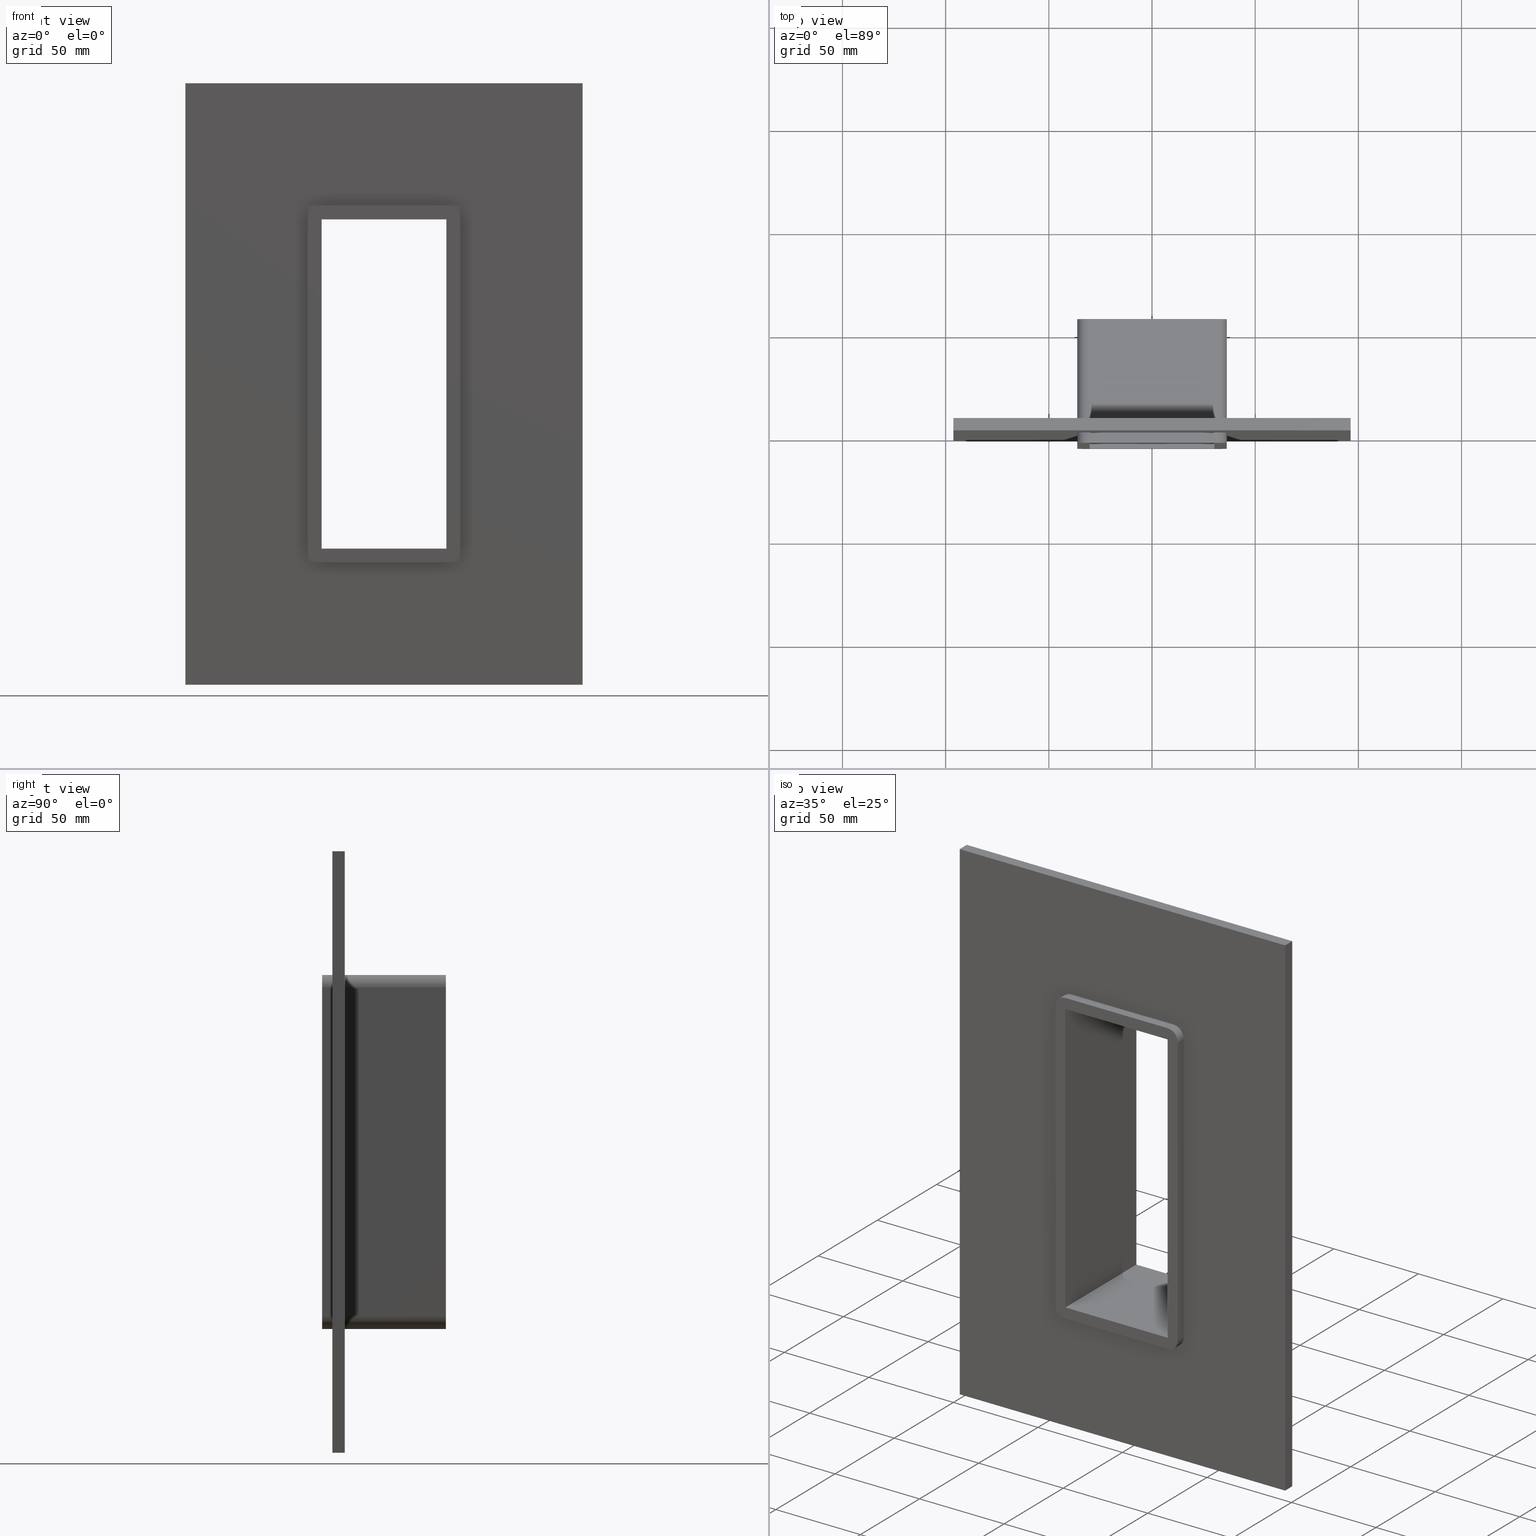
[diagram: canonical four-view strip — front | top / right | iso, engineering-drawing reading convention]
A machine part, canonical four-view strip (front | top / right | iso — engineering-drawing reading convention). The complete STEP part file that produces these views, byte-faithful:
ISO-10303-21;
HEADER;
/****************************************************************
 * Generated by software with PDElib inside                    *
 * PDElib Version v51a, created Wed 11/30/2011                  *
 * ITI Transcendata (http://www.transcendata.com/)              *
 ****************************************************************/
FILE_DESCRIPTION((''),'2;1');
FILE_NAME('C:\\RoxtecConfigurator\\CreatedFiles\\STEP\\G3X1.stp','2012-12-07T15:53:17',(''),(''),'Autodesk Inventor 2013','Autodesk Inventor 2013','');
FILE_SCHEMA(('AUTOMOTIVE_DESIGN { 1 0 10303 214 1 1 1 1 }'));
ENDSEC;
DATA;
#5=APPLICATION_CONTEXT('automotive design');
#6=APPLICATION_PROTOCOL_DEFINITION('International Standard','automotive_design',2001,#5);
#7=PRODUCT_CONTEXT('',#5,'mechanical');
#8=PRODUCT('roxtec S_SF_G','roxtec S_SF_G',$,(#7));
#9=PRODUCT_RELATED_PRODUCT_CATEGORY('part',$,(#8));
#10=PRODUCT_DEFINITION_FORMATION('',$,#8);
#11=PRODUCT_DEFINITION_CONTEXT('part definition',#5,'design');
#12=PRODUCT_DEFINITION('',$,#10,#11);
#18=(NAMED_UNIT(*)PLANE_ANGLE_UNIT()SI_UNIT($,.RADIAN.));
#19=DIMENSIONAL_EXPONENTS(0.0,0.0,0.0,0.0,0.0,0.0,0.0);
#20=PLANE_ANGLE_MEASURE_WITH_UNIT(PLANE_ANGLE_MEASURE(0.0174532925),#18);
#24=(CONVERSION_BASED_UNIT('DEGREE',#20)NAMED_UNIT(#19)PLANE_ANGLE_UNIT());
#28=(NAMED_UNIT(*)SI_UNIT($,.STERADIAN.)SOLID_ANGLE_UNIT());
#32=(LENGTH_UNIT()NAMED_UNIT(*)SI_UNIT(.MILLI.,.METRE.));
#34=UNCERTAINTY_MEASURE_WITH_UNIT(LENGTH_MEASURE(0.01),#32,'DISTANCE_ACCURACY_VALUE','');
#36=(GEOMETRIC_REPRESENTATION_CONTEXT(3)GLOBAL_UNCERTAINTY_ASSIGNED_CONTEXT((#34))GLOBAL_UNIT_ASSIGNED_CONTEXT((#24,#28,#32))REPRESENTATION_CONTEXT('None','None'));
#37=AXIS2_PLACEMENT_3D('',#38,#39,#40);
#38=CARTESIAN_POINT('',(0.0,0.0,0.0));
#39=DIRECTION('',(0.0,0.0,1.0));
#40=DIRECTION('',(1.0,0.0,0.0));
#41=SHAPE_REPRESENTATION('',(#37),#36);
#42=PRODUCT_DEFINITION_SHAPE('','',#12);
#43=SHAPE_DEFINITION_REPRESENTATION(#42,#41);
#49=(NAMED_UNIT(*)PLANE_ANGLE_UNIT()SI_UNIT($,.RADIAN.));
#50=DIMENSIONAL_EXPONENTS(0.0,0.0,0.0,0.0,0.0,0.0,0.0);
#51=PLANE_ANGLE_MEASURE_WITH_UNIT(PLANE_ANGLE_MEASURE(0.0174532925),#49);
#55=(CONVERSION_BASED_UNIT('DEGREE',#51)NAMED_UNIT(#50)PLANE_ANGLE_UNIT());
#59=(NAMED_UNIT(*)SI_UNIT($,.STERADIAN.)SOLID_ANGLE_UNIT());
#63=(LENGTH_UNIT()NAMED_UNIT(*)SI_UNIT(.MILLI.,.METRE.));
#65=UNCERTAINTY_MEASURE_WITH_UNIT(LENGTH_MEASURE(0.000001),#63,'DISTANCE_ACCURACY_VALUE','');
#67=(GEOMETRIC_REPRESENTATION_CONTEXT(3)GLOBAL_UNCERTAINTY_ASSIGNED_CONTEXT((#65))GLOBAL_UNIT_ASSIGNED_CONTEXT((#55,#59,#63))REPRESENTATION_CONTEXT('','3D'));
#68=CARTESIAN_POINT('',(0.0,6.000000000000001,0.0));
#69=DIRECTION('',(0.0,1.0,0.0));
#70=DIRECTION('',(0.0,0.0,1.0));
#71=AXIS2_PLACEMENT_3D('',#68,#69,#70);
#72=PLANE('',#71);
#73=CARTESIAN_POINT('',(96.25,6.000000000000001,-145.75));
#74=VERTEX_POINT('',#73);
#75=CARTESIAN_POINT('',(-96.25,6.000000000000001,-145.75));
#76=VERTEX_POINT('',#75);
#77=CARTESIAN_POINT('',(96.25,6.000000000000001,-145.75));
#78=DIRECTION('',(-1.0,0.0,0.0));
#79=VECTOR('',#78,192.5);
#80=LINE('',#77,#79);
#81=EDGE_CURVE('',#74,#76,#80,.T.);
#82=ORIENTED_EDGE('',*,*,#81,.T.);
#83=CARTESIAN_POINT('',(-96.25,6.000000000000001,145.75));
#84=VERTEX_POINT('',#83);
#85=CARTESIAN_POINT('',(-96.25,6.000000000000001,-145.75));
#86=DIRECTION('',(0.0,0.0,1.0));
#87=VECTOR('',#86,291.5);
#88=LINE('',#85,#87);
#89=EDGE_CURVE('',#76,#84,#88,.T.);
#90=ORIENTED_EDGE('',*,*,#89,.T.);
#91=CARTESIAN_POINT('',(96.25,6.000000000000001,145.75));
#92=VERTEX_POINT('',#91);
#93=CARTESIAN_POINT('',(-96.25,6.000000000000001,145.75));
#94=DIRECTION('',(1.0,0.0,0.0));
#95=VECTOR('',#94,192.5);
#96=LINE('',#93,#95);
#97=EDGE_CURVE('',#84,#92,#96,.T.);
#98=ORIENTED_EDGE('',*,*,#97,.T.);
#99=CARTESIAN_POINT('',(96.25,6.000000000000001,145.75));
#100=DIRECTION('',(0.0,0.0,-1.0));
#101=VECTOR('',#100,291.5);
#102=LINE('',#99,#101);
#103=EDGE_CURVE('',#92,#74,#102,.T.);
#104=ORIENTED_EDGE('',*,*,#103,.T.);
#105=EDGE_LOOP('',(#82,#90,#98,#104));
#106=FACE_OUTER_BOUND('',#105,.T.);
#107=CARTESIAN_POINT('',(30.249999999999986,6.000000000000001,85.75));
#108=VERTEX_POINT('',#107);
#109=CARTESIAN_POINT('',(36.25,6.000000000000001,79.750000000000014));
#110=VERTEX_POINT('',#109);
#111=CARTESIAN_POINT('',(30.249999999999986,6.000000000000001,79.750000000000014));
#112=DIRECTION('',(0.0,1.0,0.0));
#113=DIRECTION('',(0.0,0.0,1.0));
#114=AXIS2_PLACEMENT_3D('',#111,#112,#113);
#115=CIRCLE('',#114,6.000000000000014);
#116=EDGE_CURVE('',#108,#110,#115,.T.);
#117=ORIENTED_EDGE('',*,*,#116,.F.);
#118=CARTESIAN_POINT('',(-30.249999999999986,6.000000000000001,85.75));
#119=VERTEX_POINT('',#118);
#120=CARTESIAN_POINT('',(-30.249999999999986,6.000000000000001,85.75));
#121=DIRECTION('',(1.0,0.0,0.0));
#122=VECTOR('',#121,60.499999999999972);
#123=LINE('',#120,#122);
#124=EDGE_CURVE('',#119,#108,#123,.T.);
#125=ORIENTED_EDGE('',*,*,#124,.F.);
#126=CARTESIAN_POINT('',(-36.25,6.000000000000001,79.750000000000014));
#127=VERTEX_POINT('',#126);
#128=CARTESIAN_POINT('',(-30.249999999999986,6.000000000000001,79.750000000000014));
#129=DIRECTION('',(0.0,1.0,0.0));
#130=DIRECTION('',(-1.0,0.0,0.0));
#131=AXIS2_PLACEMENT_3D('',#128,#129,#130);
#132=CIRCLE('',#131,6.000000000000014);
#133=EDGE_CURVE('',#127,#119,#132,.T.);
#134=ORIENTED_EDGE('',*,*,#133,.F.);
#135=CARTESIAN_POINT('',(-36.25,6.000000000000001,-79.750000000000057));
#136=VERTEX_POINT('',#135);
#137=CARTESIAN_POINT('',(-36.25,6.000000000000001,-79.750000000000057));
#138=DIRECTION('',(0.0,0.0,1.0));
#139=VECTOR('',#138,159.50000000000006);
#140=LINE('',#137,#139);
#141=EDGE_CURVE('',#136,#127,#140,.T.);
#142=ORIENTED_EDGE('',*,*,#141,.F.);
#143=CARTESIAN_POINT('',(-30.249999999999986,6.000000000000001,-85.750000000000014));
#144=VERTEX_POINT('',#143);
#145=CARTESIAN_POINT('',(-30.249999999999986,6.000000000000001,-79.750000000000014));
#146=DIRECTION('',(0.0,1.0,0.0));
#147=DIRECTION('',(0.0,0.0,-1.0));
#148=AXIS2_PLACEMENT_3D('',#145,#146,#147);
#149=CIRCLE('',#148,6.000000000000014);
#150=EDGE_CURVE('',#144,#136,#149,.T.);
#151=ORIENTED_EDGE('',*,*,#150,.F.);
#152=CARTESIAN_POINT('',(30.249999999999986,6.000000000000001,-85.750000000000014));
#153=VERTEX_POINT('',#152);
#154=CARTESIAN_POINT('',(30.249999999999986,6.000000000000001,-85.750000000000014));
#155=DIRECTION('',(-1.0,0.0,0.0));
#156=VECTOR('',#155,60.499999999999972);
#157=LINE('',#154,#156);
#158=EDGE_CURVE('',#153,#144,#157,.T.);
#159=ORIENTED_EDGE('',*,*,#158,.F.);
#160=CARTESIAN_POINT('',(36.25,6.000000000000001,-79.750000000000057));
#161=VERTEX_POINT('',#160);
#162=CARTESIAN_POINT('',(30.249999999999986,6.000000000000001,-79.750000000000014));
#163=DIRECTION('',(0.0,1.0,0.0));
#164=DIRECTION('',(1.0,0.0,0.0));
#165=AXIS2_PLACEMENT_3D('',#162,#163,#164);
#166=CIRCLE('',#165,6.000000000000014);
#167=EDGE_CURVE('',#161,#153,#166,.T.);
#168=ORIENTED_EDGE('',*,*,#167,.F.);
#169=CARTESIAN_POINT('',(36.25,6.000000000000001,79.750000000000014));
#170=DIRECTION('',(0.0,0.0,-1.0));
#171=VECTOR('',#170,159.50000000000006);
#172=LINE('',#169,#171);
#173=EDGE_CURVE('',#110,#161,#172,.T.);
#174=ORIENTED_EDGE('',*,*,#173,.F.);
#175=EDGE_LOOP('',(#117,#125,#134,#142,#151,#159,#168,#174));
#176=FACE_BOUND('',#175,.T.);
#177=ADVANCED_FACE('',(#106,#176),#72,.T.);
#178=CARTESIAN_POINT('',(0.0,0.0,0.0));
#179=DIRECTION('',(0.0,1.0,0.0));
#180=DIRECTION('',(0.0,0.0,1.0));
#181=AXIS2_PLACEMENT_3D('',#178,#179,#180);
#182=PLANE('',#181);
#183=CARTESIAN_POINT('',(96.25,0.0,-145.75));
#184=VERTEX_POINT('',#183);
#185=CARTESIAN_POINT('',(-96.25,0.0,-145.75));
#186=VERTEX_POINT('',#185);
#187=CARTESIAN_POINT('',(96.25,0.0,-145.75));
#188=DIRECTION('',(-1.0,0.0,0.0));
#189=VECTOR('',#188,192.5);
#190=LINE('',#187,#189);
#191=EDGE_CURVE('',#184,#186,#190,.T.);
#192=ORIENTED_EDGE('',*,*,#191,.F.);
#193=CARTESIAN_POINT('',(96.25,0.0,145.75));
#194=VERTEX_POINT('',#193);
#195=CARTESIAN_POINT('',(96.25,0.0,145.75));
#196=DIRECTION('',(0.0,0.0,-1.0));
#197=VECTOR('',#196,291.5);
#198=LINE('',#195,#197);
#199=EDGE_CURVE('',#194,#184,#198,.T.);
#200=ORIENTED_EDGE('',*,*,#199,.F.);
#201=CARTESIAN_POINT('',(-96.25,0.0,145.75));
#202=VERTEX_POINT('',#201);
#203=CARTESIAN_POINT('',(-96.25,0.0,145.75));
#204=DIRECTION('',(1.0,0.0,0.0));
#205=VECTOR('',#204,192.5);
#206=LINE('',#203,#205);
#207=EDGE_CURVE('',#202,#194,#206,.T.);
#208=ORIENTED_EDGE('',*,*,#207,.F.);
#209=CARTESIAN_POINT('',(-96.25,0.0,-145.75));
#210=DIRECTION('',(0.0,0.0,1.0));
#211=VECTOR('',#210,291.5);
#212=LINE('',#209,#211);
#213=EDGE_CURVE('',#186,#202,#212,.T.);
#214=ORIENTED_EDGE('',*,*,#213,.F.);
#215=EDGE_LOOP('',(#192,#200,#208,#214));
#216=FACE_OUTER_BOUND('',#215,.T.);
#217=CARTESIAN_POINT('',(36.25,0.0,79.750000000000014));
#218=VERTEX_POINT('',#217);
#219=CARTESIAN_POINT('',(30.249999999999986,0.0,85.75));
#220=VERTEX_POINT('',#219);
#221=CARTESIAN_POINT('',(30.249999999999986,0.0,79.750000000000014));
#222=DIRECTION('',(0.0,-1.0,0.0));
#223=DIRECTION('',(0.0,0.0,1.0));
#224=AXIS2_PLACEMENT_3D('',#221,#222,#223);
#225=CIRCLE('',#224,6.000000000000014);
#226=EDGE_CURVE('',#218,#220,#225,.T.);
#227=ORIENTED_EDGE('',*,*,#226,.F.);
#228=CARTESIAN_POINT('',(36.25,0.0,-79.750000000000057));
#229=VERTEX_POINT('',#228);
#230=CARTESIAN_POINT('',(36.25,0.0,-79.750000000000057));
#231=DIRECTION('',(0.0,0.0,1.0));
#232=VECTOR('',#231,159.50000000000006);
#233=LINE('',#230,#232);
#234=EDGE_CURVE('',#229,#218,#233,.T.);
#235=ORIENTED_EDGE('',*,*,#234,.F.);
#236=CARTESIAN_POINT('',(30.249999999999986,0.0,-85.750000000000014));
#237=VERTEX_POINT('',#236);
#238=CARTESIAN_POINT('',(30.249999999999986,0.0,-79.750000000000014));
#239=DIRECTION('',(0.0,-1.0,0.0));
#240=DIRECTION('',(1.0,0.0,0.0));
#241=AXIS2_PLACEMENT_3D('',#238,#239,#240);
#242=CIRCLE('',#241,6.000000000000014);
#243=EDGE_CURVE('',#237,#229,#242,.T.);
#244=ORIENTED_EDGE('',*,*,#243,.F.);
#245=CARTESIAN_POINT('',(-30.249999999999986,0.0,-85.750000000000014));
#246=VERTEX_POINT('',#245);
#247=CARTESIAN_POINT('',(-30.249999999999986,0.0,-85.750000000000014));
#248=DIRECTION('',(1.0,0.0,0.0));
#249=VECTOR('',#248,60.499999999999972);
#250=LINE('',#247,#249);
#251=EDGE_CURVE('',#246,#237,#250,.T.);
#252=ORIENTED_EDGE('',*,*,#251,.F.);
#253=CARTESIAN_POINT('',(-36.25,0.0,-79.750000000000057));
#254=VERTEX_POINT('',#253);
#255=CARTESIAN_POINT('',(-30.249999999999986,0.0,-79.750000000000014));
#256=DIRECTION('',(0.0,-1.0,0.0));
#257=DIRECTION('',(0.0,0.0,-1.0));
#258=AXIS2_PLACEMENT_3D('',#255,#256,#257);
#259=CIRCLE('',#258,6.000000000000014);
#260=EDGE_CURVE('',#254,#246,#259,.T.);
#261=ORIENTED_EDGE('',*,*,#260,.F.);
#262=CARTESIAN_POINT('',(-36.25,0.0,79.750000000000014));
#263=VERTEX_POINT('',#262);
#264=CARTESIAN_POINT('',(-36.25,0.0,79.750000000000014));
#265=DIRECTION('',(0.0,0.0,-1.0));
#266=VECTOR('',#265,159.50000000000006);
#267=LINE('',#264,#266);
#268=EDGE_CURVE('',#263,#254,#267,.T.);
#269=ORIENTED_EDGE('',*,*,#268,.F.);
#270=CARTESIAN_POINT('',(-30.249999999999986,0.0,85.75));
#271=VERTEX_POINT('',#270);
#272=CARTESIAN_POINT('',(-30.249999999999986,0.0,79.750000000000014));
#273=DIRECTION('',(0.0,-1.0,0.0));
#274=DIRECTION('',(-1.0,0.0,0.0));
#275=AXIS2_PLACEMENT_3D('',#272,#273,#274);
#276=CIRCLE('',#275,6.000000000000014);
#277=EDGE_CURVE('',#271,#263,#276,.T.);
#278=ORIENTED_EDGE('',*,*,#277,.F.);
#279=CARTESIAN_POINT('',(30.249999999999986,0.0,85.75));
#280=DIRECTION('',(-1.0,0.0,0.0));
#281=VECTOR('',#280,60.499999999999972);
#282=LINE('',#279,#281);
#283=EDGE_CURVE('',#220,#271,#282,.T.);
#284=ORIENTED_EDGE('',*,*,#283,.F.);
#285=EDGE_LOOP('',(#227,#235,#244,#252,#261,#269,#278,#284));
#286=FACE_BOUND('',#285,.T.);
#287=ADVANCED_FACE('',(#216,#286),#182,.F.);
#288=CARTESIAN_POINT('',(96.25,0.0,145.75));
#289=DIRECTION('',(1.0,0.0,0.0));
#290=DIRECTION('',(0.0,0.0,-1.0));
#291=AXIS2_PLACEMENT_3D('',#288,#289,#290);
#292=PLANE('',#291);
#293=ORIENTED_EDGE('',*,*,#199,.T.);
#294=CARTESIAN_POINT('',(96.25,0.0,-145.75));
#295=DIRECTION('',(0.0,1.0,0.0));
#296=VECTOR('',#295,6.000000000000001);
#297=LINE('',#294,#296);
#298=EDGE_CURVE('',#184,#74,#297,.T.);
#299=ORIENTED_EDGE('',*,*,#298,.T.);
#300=ORIENTED_EDGE('',*,*,#103,.F.);
#301=CARTESIAN_POINT('',(96.25,0.0,145.75));
#302=DIRECTION('',(0.0,1.0,0.0));
#303=VECTOR('',#302,6.000000000000001);
#304=LINE('',#301,#303);
#305=EDGE_CURVE('',#194,#92,#304,.T.);
#306=ORIENTED_EDGE('',*,*,#305,.F.);
#307=EDGE_LOOP('',(#293,#299,#300,#306));
#308=FACE_OUTER_BOUND('',#307,.T.);
#309=ADVANCED_FACE('',(#308),#292,.T.);
#310=CARTESIAN_POINT('',(-96.25,0.0,145.75));
#311=DIRECTION('',(0.0,0.0,1.0));
#312=DIRECTION('',(1.0,0.0,0.0));
#313=AXIS2_PLACEMENT_3D('',#310,#311,#312);
#314=PLANE('',#313);
#315=ORIENTED_EDGE('',*,*,#207,.T.);
#316=ORIENTED_EDGE('',*,*,#305,.T.);
#317=ORIENTED_EDGE('',*,*,#97,.F.);
#318=CARTESIAN_POINT('',(-96.25,0.0,145.75));
#319=DIRECTION('',(0.0,1.0,0.0));
#320=VECTOR('',#319,6.000000000000001);
#321=LINE('',#318,#320);
#322=EDGE_CURVE('',#202,#84,#321,.T.);
#323=ORIENTED_EDGE('',*,*,#322,.F.);
#324=EDGE_LOOP('',(#315,#316,#317,#323));
#325=FACE_OUTER_BOUND('',#324,.T.);
#326=ADVANCED_FACE('',(#325),#314,.T.);
#327=CARTESIAN_POINT('',(-96.25,0.0,-145.75));
#328=DIRECTION('',(-1.0,0.0,0.0));
#329=DIRECTION('',(0.0,0.0,1.0));
#330=AXIS2_PLACEMENT_3D('',#327,#328,#329);
#331=PLANE('',#330);
#332=ORIENTED_EDGE('',*,*,#213,.T.);
#333=ORIENTED_EDGE('',*,*,#322,.T.);
#334=ORIENTED_EDGE('',*,*,#89,.F.);
#335=CARTESIAN_POINT('',(-96.25,0.0,-145.75));
#336=DIRECTION('',(0.0,1.0,0.0));
#337=VECTOR('',#336,6.000000000000001);
#338=LINE('',#335,#337);
#339=EDGE_CURVE('',#186,#76,#338,.T.);
#340=ORIENTED_EDGE('',*,*,#339,.F.);
#341=EDGE_LOOP('',(#332,#333,#334,#340));
#342=FACE_OUTER_BOUND('',#341,.T.);
#343=ADVANCED_FACE('',(#342),#331,.T.);
#344=CARTESIAN_POINT('',(96.25,0.0,-145.75));
#345=DIRECTION('',(0.0,0.0,-1.0));
#346=DIRECTION('',(-1.0,0.0,0.0));
#347=AXIS2_PLACEMENT_3D('',#344,#345,#346);
#348=PLANE('',#347);
#349=ORIENTED_EDGE('',*,*,#191,.T.);
#350=ORIENTED_EDGE('',*,*,#339,.T.);
#351=ORIENTED_EDGE('',*,*,#81,.F.);
#352=ORIENTED_EDGE('',*,*,#298,.F.);
#353=EDGE_LOOP('',(#349,#350,#351,#352));
#354=FACE_OUTER_BOUND('',#353,.T.);
#355=ADVANCED_FACE('',(#354),#348,.T.);
#356=CARTESIAN_POINT('',(-30.249999999999986,0.0,-79.75));
#357=DIRECTION('',(-1.0,0.0,0.0));
#358=DIRECTION('',(0.0,0.0,1.0));
#359=AXIS2_PLACEMENT_3D('',#356,#357,#358);
#360=PLANE('',#359);
#361=CARTESIAN_POINT('',(-30.249999999999986,-5.0,79.750000000000014));
#362=VERTEX_POINT('',#361);
#363=CARTESIAN_POINT('',(-30.249999999999986,55.0,79.750000000000014));
#364=VERTEX_POINT('',#363);
#365=CARTESIAN_POINT('',(-30.249999999999986,-5.0,79.750000000000014));
#366=DIRECTION('',(0.0,1.0,0.0));
#367=VECTOR('',#366,60.0);
#368=LINE('',#365,#367);
#369=EDGE_CURVE('',#362,#364,#368,.T.);
#370=ORIENTED_EDGE('',*,*,#369,.F.);
#371=CARTESIAN_POINT('',(-30.249999999999986,-5.0,-79.75));
#372=VERTEX_POINT('',#371);
#373=CARTESIAN_POINT('',(-30.249999999999986,-5.0,-79.75));
#374=DIRECTION('',(0.0,0.0,1.0));
#375=VECTOR('',#374,159.50000000000003);
#376=LINE('',#373,#375);
#377=EDGE_CURVE('',#372,#362,#376,.T.);
#378=ORIENTED_EDGE('',*,*,#377,.F.);
#379=CARTESIAN_POINT('',(-30.249999999999986,55.0,-79.75));
#380=VERTEX_POINT('',#379);
#381=CARTESIAN_POINT('',(-30.249999999999986,-5.0,-79.75));
#382=DIRECTION('',(0.0,1.0,0.0));
#383=VECTOR('',#382,60.0);
#384=LINE('',#381,#383);
#385=EDGE_CURVE('',#372,#380,#384,.T.);
#386=ORIENTED_EDGE('',*,*,#385,.T.);
#387=CARTESIAN_POINT('',(-30.249999999999986,55.0,79.750000000000028));
#388=DIRECTION('',(0.0,0.0,-1.0));
#389=VECTOR('',#388,159.50000000000003);
#390=LINE('',#387,#389);
#391=EDGE_CURVE('',#364,#380,#390,.T.);
#392=ORIENTED_EDGE('',*,*,#391,.F.);
#393=EDGE_LOOP('',(#370,#378,#386,#392));
#394=FACE_OUTER_BOUND('',#393,.T.);
#395=ADVANCED_FACE('',(#394),#360,.F.);
#396=CARTESIAN_POINT('',(-30.249999999999986,0.0,-79.750000000000014));
#397=DIRECTION('',(0.0,1.0,0.0));
#398=DIRECTION('',(0.0,0.0,-1.0));
#399=AXIS2_PLACEMENT_3D('',#396,#397,#398);
#400=CYLINDRICAL_SURFACE('',#399,6.000000000000014);
#401=ORIENTED_EDGE('',*,*,#260,.T.);
#402=CARTESIAN_POINT('',(-30.249999999999986,-5.0,-85.750000000000028));
#403=VERTEX_POINT('',#402);
#404=CARTESIAN_POINT('',(-30.249999999999986,-5.0,-85.750000000000014));
#405=DIRECTION('',(0.0,1.0,0.0));
#406=VECTOR('',#405,5.0);
#407=LINE('',#404,#406);
#408=EDGE_CURVE('',#403,#246,#407,.T.);
#409=ORIENTED_EDGE('',*,*,#408,.F.);
#410=CARTESIAN_POINT('',(-36.25,-5.0,-79.750000000000057));
#411=VERTEX_POINT('',#410);
#412=CARTESIAN_POINT('',(-30.249999999999986,-5.0,-79.750000000000014));
#413=DIRECTION('',(0.0,-1.0,0.0));
#414=DIRECTION('',(0.0,0.0,-1.0));
#415=AXIS2_PLACEMENT_3D('',#412,#413,#414);
#416=CIRCLE('',#415,6.000000000000014);
#417=EDGE_CURVE('',#411,#403,#416,.T.);
#418=ORIENTED_EDGE('',*,*,#417,.F.);
#419=CARTESIAN_POINT('',(-36.25,-5.0,-79.750000000000057));
#420=DIRECTION('',(0.0,1.0,0.0));
#421=VECTOR('',#420,5.0);
#422=LINE('',#419,#421);
#423=EDGE_CURVE('',#411,#254,#422,.T.);
#424=ORIENTED_EDGE('',*,*,#423,.T.);
#425=EDGE_LOOP('',(#401,#409,#418,#424));
#426=FACE_OUTER_BOUND('',#425,.T.);
#427=ADVANCED_FACE('',(#426),#400,.T.);
#428=CARTESIAN_POINT('',(-30.249999999999986,0.0,-79.750000000000014));
#429=DIRECTION('',(0.0,1.0,0.0));
#430=DIRECTION('',(0.0,0.0,-1.0));
#431=AXIS2_PLACEMENT_3D('',#428,#429,#430);
#432=CYLINDRICAL_SURFACE('',#431,6.000000000000014);
#433=ORIENTED_EDGE('',*,*,#150,.T.);
#434=CARTESIAN_POINT('',(-36.25,55.0,-79.750000000000057));
#435=VERTEX_POINT('',#434);
#436=CARTESIAN_POINT('',(-36.25,6.000000000000001,-79.750000000000057));
#437=DIRECTION('',(0.0,1.0,0.0));
#438=VECTOR('',#437,49.0);
#439=LINE('',#436,#438);
#440=EDGE_CURVE('',#136,#435,#439,.T.);
#441=ORIENTED_EDGE('',*,*,#440,.T.);
#442=CARTESIAN_POINT('',(-30.249999999999986,55.0,-85.750000000000028));
#443=VERTEX_POINT('',#442);
#444=CARTESIAN_POINT('',(-30.249999999999986,55.0,-79.750000000000014));
#445=DIRECTION('',(0.0,1.0,0.0));
#446=DIRECTION('',(0.0,0.0,-1.0));
#447=AXIS2_PLACEMENT_3D('',#444,#445,#446);
#448=CIRCLE('',#447,6.000000000000014);
#449=EDGE_CURVE('',#443,#435,#448,.T.);
#450=ORIENTED_EDGE('',*,*,#449,.F.);
#451=CARTESIAN_POINT('',(-30.249999999999986,6.000000000000001,-85.750000000000014));
#452=DIRECTION('',(0.0,1.0,0.0));
#453=VECTOR('',#452,49.0);
#454=LINE('',#451,#453);
#455=EDGE_CURVE('',#144,#443,#454,.T.);
#456=ORIENTED_EDGE('',*,*,#455,.F.);
#457=EDGE_LOOP('',(#433,#441,#450,#456));
#458=FACE_OUTER_BOUND('',#457,.T.);
#459=ADVANCED_FACE('',(#458),#432,.T.);
#460=CARTESIAN_POINT('',(-36.25,0.0,-79.750000000000057));
#461=DIRECTION('',(-1.0,0.0,0.0));
#462=DIRECTION('',(0.0,0.0,1.0));
#463=AXIS2_PLACEMENT_3D('',#460,#461,#462);
#464=PLANE('',#463);
#465=ORIENTED_EDGE('',*,*,#268,.T.);
#466=ORIENTED_EDGE('',*,*,#423,.F.);
#467=CARTESIAN_POINT('',(-36.25,-5.0,79.750000000000014));
#468=VERTEX_POINT('',#467);
#469=CARTESIAN_POINT('',(-36.25,-5.0,79.75));
#470=DIRECTION('',(0.0,0.0,-1.0));
#471=VECTOR('',#470,159.50000000000006);
#472=LINE('',#469,#471);
#473=EDGE_CURVE('',#468,#411,#472,.T.);
#474=ORIENTED_EDGE('',*,*,#473,.F.);
#475=CARTESIAN_POINT('',(-36.25,-5.0,79.750000000000014));
#476=DIRECTION('',(0.0,1.0,0.0));
#477=VECTOR('',#476,5.0);
#478=LINE('',#475,#477);
#479=EDGE_CURVE('',#468,#263,#478,.T.);
#480=ORIENTED_EDGE('',*,*,#479,.T.);
#481=EDGE_LOOP('',(#465,#466,#474,#480));
#482=FACE_OUTER_BOUND('',#481,.T.);
#483=ADVANCED_FACE('',(#482),#464,.T.);
#484=CARTESIAN_POINT('',(-36.25,0.0,-79.750000000000057));
#485=DIRECTION('',(-1.0,0.0,0.0));
#486=DIRECTION('',(0.0,0.0,1.0));
#487=AXIS2_PLACEMENT_3D('',#484,#485,#486);
#488=PLANE('',#487);
#489=ORIENTED_EDGE('',*,*,#141,.T.);
#490=CARTESIAN_POINT('',(-36.25,55.0,79.750000000000014));
#491=VERTEX_POINT('',#490);
#492=CARTESIAN_POINT('',(-36.25,6.000000000000001,79.750000000000014));
#493=DIRECTION('',(0.0,1.0,0.0));
#494=VECTOR('',#493,49.0);
#495=LINE('',#492,#494);
#496=EDGE_CURVE('',#127,#491,#495,.T.);
#497=ORIENTED_EDGE('',*,*,#496,.T.);
#498=CARTESIAN_POINT('',(-36.25,55.0,-79.750000000000057));
#499=DIRECTION('',(0.0,0.0,1.0));
#500=VECTOR('',#499,159.50000000000006);
#501=LINE('',#498,#500);
#502=EDGE_CURVE('',#435,#491,#501,.T.);
#503=ORIENTED_EDGE('',*,*,#502,.F.);
#504=ORIENTED_EDGE('',*,*,#440,.F.);
#505=EDGE_LOOP('',(#489,#497,#503,#504));
#506=FACE_OUTER_BOUND('',#505,.T.);
#507=ADVANCED_FACE('',(#506),#488,.T.);
#508=CARTESIAN_POINT('',(30.249999999999986,0.0,-85.750000000000014));
#509=DIRECTION('',(0.0,0.0,-1.0));
#510=DIRECTION('',(-1.0,0.0,0.0));
#511=AXIS2_PLACEMENT_3D('',#508,#509,#510);
#512=PLANE('',#511);
#513=ORIENTED_EDGE('',*,*,#251,.T.);
#514=CARTESIAN_POINT('',(30.249999999999986,-5.0,-85.750000000000028));
#515=VERTEX_POINT('',#514);
#516=CARTESIAN_POINT('',(30.249999999999986,-5.0,-85.750000000000014));
#517=DIRECTION('',(0.0,1.0,0.0));
#518=VECTOR('',#517,5.0);
#519=LINE('',#516,#518);
#520=EDGE_CURVE('',#515,#237,#519,.T.);
#521=ORIENTED_EDGE('',*,*,#520,.F.);
#522=CARTESIAN_POINT('',(-30.249999999999986,-5.0,-85.750000000000014));
#523=DIRECTION('',(1.0,0.0,0.0));
#524=VECTOR('',#523,60.499999999999972);
#525=LINE('',#522,#524);
#526=EDGE_CURVE('',#403,#515,#525,.T.);
#527=ORIENTED_EDGE('',*,*,#526,.F.);
#528=ORIENTED_EDGE('',*,*,#408,.T.);
#529=EDGE_LOOP('',(#513,#521,#527,#528));
#530=FACE_OUTER_BOUND('',#529,.T.);
#531=ADVANCED_FACE('',(#530),#512,.T.);
#532=CARTESIAN_POINT('',(-30.249999999999986,0.0,79.750000000000014));
#533=DIRECTION('',(0.0,1.0,0.0));
#534=DIRECTION('',(-1.0,0.0,0.0));
#535=AXIS2_PLACEMENT_3D('',#532,#533,#534);
#536=CYLINDRICAL_SURFACE('',#535,6.000000000000014);
#537=ORIENTED_EDGE('',*,*,#277,.T.);
#538=ORIENTED_EDGE('',*,*,#479,.F.);
#539=CARTESIAN_POINT('',(-30.249999999999986,-5.0,85.75));
#540=VERTEX_POINT('',#539);
#541=CARTESIAN_POINT('',(-30.249999999999986,-5.0,79.750000000000014));
#542=DIRECTION('',(0.0,-1.0,0.0));
#543=DIRECTION('',(-1.0,0.0,0.0));
#544=AXIS2_PLACEMENT_3D('',#541,#542,#543);
#545=CIRCLE('',#544,6.000000000000014);
#546=EDGE_CURVE('',#540,#468,#545,.T.);
#547=ORIENTED_EDGE('',*,*,#546,.F.);
#548=CARTESIAN_POINT('',(-30.249999999999986,-5.0,85.75));
#549=DIRECTION('',(0.0,1.0,0.0));
#550=VECTOR('',#549,5.0);
#551=LINE('',#548,#550);
#552=EDGE_CURVE('',#540,#271,#551,.T.);
#553=ORIENTED_EDGE('',*,*,#552,.T.);
#554=EDGE_LOOP('',(#537,#538,#547,#553));
#555=FACE_OUTER_BOUND('',#554,.T.);
#556=ADVANCED_FACE('',(#555),#536,.T.);
#557=CARTESIAN_POINT('',(-30.249999999999986,0.0,79.750000000000014));
#558=DIRECTION('',(0.0,1.0,0.0));
#559=DIRECTION('',(-1.0,0.0,0.0));
#560=AXIS2_PLACEMENT_3D('',#557,#558,#559);
#561=CYLINDRICAL_SURFACE('',#560,6.000000000000014);
#562=ORIENTED_EDGE('',*,*,#133,.T.);
#563=CARTESIAN_POINT('',(-30.249999999999986,55.0,85.75));
#564=VERTEX_POINT('',#563);
#565=CARTESIAN_POINT('',(-30.249999999999986,6.000000000000001,85.75));
#566=DIRECTION('',(0.0,1.0,0.0));
#567=VECTOR('',#566,49.0);
#568=LINE('',#565,#567);
#569=EDGE_CURVE('',#119,#564,#568,.T.);
#570=ORIENTED_EDGE('',*,*,#569,.T.);
#571=CARTESIAN_POINT('',(-30.249999999999986,55.0,79.750000000000014));
#572=DIRECTION('',(0.0,1.0,0.0));
#573=DIRECTION('',(-1.0,0.0,0.0));
#574=AXIS2_PLACEMENT_3D('',#571,#572,#573);
#575=CIRCLE('',#574,6.000000000000014);
#576=EDGE_CURVE('',#491,#564,#575,.T.);
#577=ORIENTED_EDGE('',*,*,#576,.F.);
#578=ORIENTED_EDGE('',*,*,#496,.F.);
#579=EDGE_LOOP('',(#562,#570,#577,#578));
#580=FACE_OUTER_BOUND('',#579,.T.);
#581=ADVANCED_FACE('',(#580),#561,.T.);
#582=CARTESIAN_POINT('',(30.249999999999986,0.0,-79.750000000000014));
#583=DIRECTION('',(0.0,1.0,0.0));
#584=DIRECTION('',(1.0,0.0,0.0));
#585=AXIS2_PLACEMENT_3D('',#582,#583,#584);
#586=CYLINDRICAL_SURFACE('',#585,6.000000000000014);
#587=ORIENTED_EDGE('',*,*,#243,.T.);
#588=CARTESIAN_POINT('',(36.25,-5.0,-79.750000000000057));
#589=VERTEX_POINT('',#588);
#590=CARTESIAN_POINT('',(36.25,-5.0,-79.750000000000057));
#591=DIRECTION('',(0.0,1.0,0.0));
#592=VECTOR('',#591,5.0);
#593=LINE('',#590,#592);
#594=EDGE_CURVE('',#589,#229,#593,.T.);
#595=ORIENTED_EDGE('',*,*,#594,.F.);
#596=CARTESIAN_POINT('',(30.249999999999986,-5.0,-79.750000000000014));
#597=DIRECTION('',(0.0,-1.0,0.0));
#598=DIRECTION('',(1.0,0.0,0.0));
#599=AXIS2_PLACEMENT_3D('',#596,#597,#598);
#600=CIRCLE('',#599,6.000000000000014);
#601=EDGE_CURVE('',#515,#589,#600,.T.);
#602=ORIENTED_EDGE('',*,*,#601,.F.);
#603=ORIENTED_EDGE('',*,*,#520,.T.);
#604=EDGE_LOOP('',(#587,#595,#602,#603));
#605=FACE_OUTER_BOUND('',#604,.T.);
#606=ADVANCED_FACE('',(#605),#586,.T.);
#607=CARTESIAN_POINT('',(-30.249999999999986,0.0,85.75));
#608=DIRECTION('',(0.0,0.0,1.0));
#609=DIRECTION('',(1.0,0.0,0.0));
#610=AXIS2_PLACEMENT_3D('',#607,#608,#609);
#611=PLANE('',#610);
#612=ORIENTED_EDGE('',*,*,#283,.T.);
#613=ORIENTED_EDGE('',*,*,#552,.F.);
#614=CARTESIAN_POINT('',(30.249999999999986,-5.0,85.75));
#615=VERTEX_POINT('',#614);
#616=CARTESIAN_POINT('',(30.249999999999986,-5.0,85.75));
#617=DIRECTION('',(-1.0,0.0,0.0));
#618=VECTOR('',#617,60.499999999999972);
#619=LINE('',#616,#618);
#620=EDGE_CURVE('',#615,#540,#619,.T.);
#621=ORIENTED_EDGE('',*,*,#620,.F.);
#622=CARTESIAN_POINT('',(30.249999999999986,-5.0,85.75));
#623=DIRECTION('',(0.0,1.0,0.0));
#624=VECTOR('',#623,5.0);
#625=LINE('',#622,#624);
#626=EDGE_CURVE('',#615,#220,#625,.T.);
#627=ORIENTED_EDGE('',*,*,#626,.T.);
#628=EDGE_LOOP('',(#612,#613,#621,#627));
#629=FACE_OUTER_BOUND('',#628,.T.);
#630=ADVANCED_FACE('',(#629),#611,.T.);
#631=CARTESIAN_POINT('',(-30.249999999999986,0.0,85.75));
#632=DIRECTION('',(0.0,0.0,1.0));
#633=DIRECTION('',(1.0,0.0,0.0));
#634=AXIS2_PLACEMENT_3D('',#631,#632,#633);
#635=PLANE('',#634);
#636=ORIENTED_EDGE('',*,*,#124,.T.);
#637=CARTESIAN_POINT('',(30.249999999999986,55.0,85.75));
#638=VERTEX_POINT('',#637);
#639=CARTESIAN_POINT('',(30.249999999999986,6.000000000000001,85.75));
#640=DIRECTION('',(0.0,1.0,0.0));
#641=VECTOR('',#640,49.0);
#642=LINE('',#639,#641);
#643=EDGE_CURVE('',#108,#638,#642,.T.);
#644=ORIENTED_EDGE('',*,*,#643,.T.);
#645=CARTESIAN_POINT('',(-30.249999999999986,55.0,85.75));
#646=DIRECTION('',(1.0,0.0,0.0));
#647=VECTOR('',#646,60.499999999999972);
#648=LINE('',#645,#647);
#649=EDGE_CURVE('',#564,#638,#648,.T.);
#650=ORIENTED_EDGE('',*,*,#649,.F.);
#651=ORIENTED_EDGE('',*,*,#569,.F.);
#652=EDGE_LOOP('',(#636,#644,#650,#651));
#653=FACE_OUTER_BOUND('',#652,.T.);
#654=ADVANCED_FACE('',(#653),#635,.T.);
#655=CARTESIAN_POINT('',(36.25,0.0,79.750000000000014));
#656=DIRECTION('',(1.0,0.0,0.0));
#657=DIRECTION('',(0.0,0.0,-1.0));
#658=AXIS2_PLACEMENT_3D('',#655,#656,#657);
#659=PLANE('',#658);
#660=ORIENTED_EDGE('',*,*,#234,.T.);
#661=CARTESIAN_POINT('',(36.25,-5.0,79.750000000000014));
#662=VERTEX_POINT('',#661);
#663=CARTESIAN_POINT('',(36.25,0.0,79.750000000000014));
#664=DIRECTION('',(0.0,-1.0,0.0));
#665=VECTOR('',#664,5.0);
#666=LINE('',#663,#665);
#667=EDGE_CURVE('',#218,#662,#666,.T.);
#668=ORIENTED_EDGE('',*,*,#667,.T.);
#669=CARTESIAN_POINT('',(36.25,-5.0,-79.750000000000043));
#670=DIRECTION('',(0.0,0.0,1.0));
#671=VECTOR('',#670,159.50000000000006);
#672=LINE('',#669,#671);
#673=EDGE_CURVE('',#589,#662,#672,.T.);
#674=ORIENTED_EDGE('',*,*,#673,.F.);
#675=ORIENTED_EDGE('',*,*,#594,.T.);
#676=EDGE_LOOP('',(#660,#668,#674,#675));
#677=FACE_OUTER_BOUND('',#676,.T.);
#678=ADVANCED_FACE('',(#677),#659,.T.);
#679=CARTESIAN_POINT('',(30.249999999999986,0.0,79.750000000000014));
#680=DIRECTION('',(0.0,1.0,0.0));
#681=DIRECTION('',(0.0,0.0,1.0));
#682=AXIS2_PLACEMENT_3D('',#679,#680,#681);
#683=CYLINDRICAL_SURFACE('',#682,6.000000000000014);
#684=ORIENTED_EDGE('',*,*,#226,.T.);
#685=ORIENTED_EDGE('',*,*,#626,.F.);
#686=CARTESIAN_POINT('',(30.249999999999986,-5.0,79.750000000000014));
#687=DIRECTION('',(0.0,-1.0,0.0));
#688=DIRECTION('',(0.0,0.0,1.0));
#689=AXIS2_PLACEMENT_3D('',#686,#687,#688);
#690=CIRCLE('',#689,6.000000000000014);
#691=EDGE_CURVE('',#662,#615,#690,.T.);
#692=ORIENTED_EDGE('',*,*,#691,.F.);
#693=ORIENTED_EDGE('',*,*,#667,.F.);
#694=EDGE_LOOP('',(#684,#685,#692,#693));
#695=FACE_OUTER_BOUND('',#694,.T.);
#696=ADVANCED_FACE('',(#695),#683,.T.);
#697=CARTESIAN_POINT('',(30.250000000000004,0.0,79.750000000000014));
#698=DIRECTION('',(1.0,0.0,0.0));
#699=DIRECTION('',(0.0,0.0,-1.0));
#700=AXIS2_PLACEMENT_3D('',#697,#698,#699);
#701=PLANE('',#700);
#702=CARTESIAN_POINT('',(30.250000000000004,-5.0,79.750000000000014));
#703=VERTEX_POINT('',#702);
#704=CARTESIAN_POINT('',(30.250000000000004,55.0,79.750000000000014));
#705=VERTEX_POINT('',#704);
#706=CARTESIAN_POINT('',(30.250000000000004,-5.0,79.750000000000014));
#707=DIRECTION('',(0.0,1.0,0.0));
#708=VECTOR('',#707,60.0);
#709=LINE('',#706,#708);
#710=EDGE_CURVE('',#703,#705,#709,.T.);
#711=ORIENTED_EDGE('',*,*,#710,.T.);
#712=CARTESIAN_POINT('',(30.250000000000004,55.0,-79.75));
#713=VERTEX_POINT('',#712);
#714=CARTESIAN_POINT('',(30.250000000000004,55.0,-79.75));
#715=DIRECTION('',(0.0,0.0,1.0));
#716=VECTOR('',#715,159.5);
#717=LINE('',#714,#716);
#718=EDGE_CURVE('',#713,#705,#717,.T.);
#719=ORIENTED_EDGE('',*,*,#718,.F.);
#720=CARTESIAN_POINT('',(30.250000000000004,-5.0,-79.75));
#721=VERTEX_POINT('',#720);
#722=CARTESIAN_POINT('',(30.250000000000004,55.0,-79.75));
#723=DIRECTION('',(0.0,-1.0,0.0));
#724=VECTOR('',#723,60.0);
#725=LINE('',#722,#724);
#726=EDGE_CURVE('',#713,#721,#725,.T.);
#727=ORIENTED_EDGE('',*,*,#726,.T.);
#728=CARTESIAN_POINT('',(30.250000000000004,-5.0,79.750000000000014));
#729=DIRECTION('',(0.0,0.0,-1.0));
#730=VECTOR('',#729,159.5);
#731=LINE('',#728,#730);
#732=EDGE_CURVE('',#703,#721,#731,.T.);
#733=ORIENTED_EDGE('',*,*,#732,.F.);
#734=EDGE_LOOP('',(#711,#719,#727,#733));
#735=FACE_OUTER_BOUND('',#734,.T.);
#736=ADVANCED_FACE('',(#735),#701,.F.);
#737=CARTESIAN_POINT('',(-30.249999999999986,0.0,79.750000000000014));
#738=DIRECTION('',(0.0,0.0,1.0));
#739=DIRECTION('',(1.0,0.0,0.0));
#740=AXIS2_PLACEMENT_3D('',#737,#738,#739);
#741=PLANE('',#740);
#742=ORIENTED_EDGE('',*,*,#369,.T.);
#743=CARTESIAN_POINT('',(30.250000000000007,55.0,79.750000000000014));
#744=DIRECTION('',(-1.0,0.0,0.0));
#745=VECTOR('',#744,60.499999999999993);
#746=LINE('',#743,#745);
#747=EDGE_CURVE('',#705,#364,#746,.T.);
#748=ORIENTED_EDGE('',*,*,#747,.F.);
#749=ORIENTED_EDGE('',*,*,#710,.F.);
#750=CARTESIAN_POINT('',(-30.249999999999986,-5.0,79.750000000000014));
#751=DIRECTION('',(1.0,0.0,0.0));
#752=VECTOR('',#751,60.499999999999993);
#753=LINE('',#750,#752);
#754=EDGE_CURVE('',#362,#703,#753,.T.);
#755=ORIENTED_EDGE('',*,*,#754,.F.);
#756=EDGE_LOOP('',(#742,#748,#749,#755));
#757=FACE_OUTER_BOUND('',#756,.T.);
#758=ADVANCED_FACE('',(#757),#741,.F.);
#759=CARTESIAN_POINT('',(30.250000000000004,0.0,-79.75));
#760=DIRECTION('',(0.0,0.0,-1.0));
#761=DIRECTION('',(-1.0,0.0,0.0));
#762=AXIS2_PLACEMENT_3D('',#759,#760,#761);
#763=PLANE('',#762);
#764=ORIENTED_EDGE('',*,*,#385,.F.);
#765=CARTESIAN_POINT('',(30.250000000000004,-5.0,-79.75));
#766=DIRECTION('',(-1.0,0.0,0.0));
#767=VECTOR('',#766,60.499999999999986);
#768=LINE('',#765,#767);
#769=EDGE_CURVE('',#721,#372,#768,.T.);
#770=ORIENTED_EDGE('',*,*,#769,.F.);
#771=ORIENTED_EDGE('',*,*,#726,.F.);
#772=CARTESIAN_POINT('',(-30.249999999999986,55.0,-79.75));
#773=DIRECTION('',(1.0,0.0,0.0));
#774=VECTOR('',#773,60.499999999999986);
#775=LINE('',#772,#774);
#776=EDGE_CURVE('',#380,#713,#775,.T.);
#777=ORIENTED_EDGE('',*,*,#776,.F.);
#778=EDGE_LOOP('',(#764,#770,#771,#777));
#779=FACE_OUTER_BOUND('',#778,.T.);
#780=ADVANCED_FACE('',(#779),#763,.F.);
#781=CARTESIAN_POINT('',(0.0,-5.0,-6.116875E-015));
#782=DIRECTION('',(0.0,1.0,0.0));
#783=DIRECTION('',(0.0,0.0,1.0));
#784=AXIS2_PLACEMENT_3D('',#781,#782,#783);
#785=PLANE('',#784);
#786=ORIENTED_EDGE('',*,*,#673,.T.);
#787=ORIENTED_EDGE('',*,*,#691,.T.);
#788=ORIENTED_EDGE('',*,*,#620,.T.);
#789=ORIENTED_EDGE('',*,*,#546,.T.);
#790=ORIENTED_EDGE('',*,*,#473,.T.);
#791=ORIENTED_EDGE('',*,*,#417,.T.);
#792=ORIENTED_EDGE('',*,*,#526,.T.);
#793=ORIENTED_EDGE('',*,*,#601,.T.);
#794=EDGE_LOOP('',(#786,#787,#788,#789,#790,#791,#792,#793));
#795=FACE_OUTER_BOUND('',#794,.T.);
#796=ORIENTED_EDGE('',*,*,#732,.T.);
#797=ORIENTED_EDGE('',*,*,#769,.T.);
#798=ORIENTED_EDGE('',*,*,#377,.T.);
#799=ORIENTED_EDGE('',*,*,#754,.T.);
#800=EDGE_LOOP('',(#796,#797,#798,#799));
#801=FACE_BOUND('',#800,.T.);
#802=ADVANCED_FACE('',(#795,#801),#785,.F.);
#803=CARTESIAN_POINT('',(30.249999999999986,0.0,79.750000000000014));
#804=DIRECTION('',(0.0,1.0,0.0));
#805=DIRECTION('',(0.0,0.0,1.0));
#806=AXIS2_PLACEMENT_3D('',#803,#804,#805);
#807=CYLINDRICAL_SURFACE('',#806,6.000000000000014);
#808=ORIENTED_EDGE('',*,*,#116,.T.);
#809=CARTESIAN_POINT('',(36.25,55.0,79.750000000000014));
#810=VERTEX_POINT('',#809);
#811=CARTESIAN_POINT('',(36.25,55.0,79.750000000000014));
#812=DIRECTION('',(0.0,-1.0,0.0));
#813=VECTOR('',#812,49.0);
#814=LINE('',#811,#813);
#815=EDGE_CURVE('',#810,#110,#814,.T.);
#816=ORIENTED_EDGE('',*,*,#815,.F.);
#817=CARTESIAN_POINT('',(30.249999999999986,55.0,79.750000000000014));
#818=DIRECTION('',(0.0,1.0,0.0));
#819=DIRECTION('',(0.0,0.0,1.0));
#820=AXIS2_PLACEMENT_3D('',#817,#818,#819);
#821=CIRCLE('',#820,6.000000000000014);
#822=EDGE_CURVE('',#638,#810,#821,.T.);
#823=ORIENTED_EDGE('',*,*,#822,.F.);
#824=ORIENTED_EDGE('',*,*,#643,.F.);
#825=EDGE_LOOP('',(#808,#816,#823,#824));
#826=FACE_OUTER_BOUND('',#825,.T.);
#827=ADVANCED_FACE('',(#826),#807,.T.);
#828=CARTESIAN_POINT('',(30.249999999999986,0.0,-85.750000000000014));
#829=DIRECTION('',(0.0,0.0,-1.0));
#830=DIRECTION('',(-1.0,0.0,0.0));
#831=AXIS2_PLACEMENT_3D('',#828,#829,#830);
#832=PLANE('',#831);
#833=ORIENTED_EDGE('',*,*,#158,.T.);
#834=ORIENTED_EDGE('',*,*,#455,.T.);
#835=CARTESIAN_POINT('',(30.249999999999986,55.0,-85.750000000000028));
#836=VERTEX_POINT('',#835);
#837=CARTESIAN_POINT('',(30.249999999999986,55.0,-85.750000000000014));
#838=DIRECTION('',(-1.0,0.0,0.0));
#839=VECTOR('',#838,60.499999999999972);
#840=LINE('',#837,#839);
#841=EDGE_CURVE('',#836,#443,#840,.T.);
#842=ORIENTED_EDGE('',*,*,#841,.F.);
#843=CARTESIAN_POINT('',(30.249999999999986,6.000000000000001,-85.750000000000014));
#844=DIRECTION('',(0.0,1.0,0.0));
#845=VECTOR('',#844,49.0);
#846=LINE('',#843,#845);
#847=EDGE_CURVE('',#153,#836,#846,.T.);
#848=ORIENTED_EDGE('',*,*,#847,.F.);
#849=EDGE_LOOP('',(#833,#834,#842,#848));
#850=FACE_OUTER_BOUND('',#849,.T.);
#851=ADVANCED_FACE('',(#850),#832,.T.);
#852=CARTESIAN_POINT('',(30.249999999999986,0.0,-79.750000000000014));
#853=DIRECTION('',(0.0,1.0,0.0));
#854=DIRECTION('',(1.0,0.0,0.0));
#855=AXIS2_PLACEMENT_3D('',#852,#853,#854);
#856=CYLINDRICAL_SURFACE('',#855,6.000000000000014);
#857=ORIENTED_EDGE('',*,*,#167,.T.);
#858=ORIENTED_EDGE('',*,*,#847,.T.);
#859=CARTESIAN_POINT('',(36.25,55.0,-79.750000000000057));
#860=VERTEX_POINT('',#859);
#861=CARTESIAN_POINT('',(30.249999999999986,55.0,-79.750000000000014));
#862=DIRECTION('',(0.0,1.0,0.0));
#863=DIRECTION('',(1.0,0.0,0.0));
#864=AXIS2_PLACEMENT_3D('',#861,#862,#863);
#865=CIRCLE('',#864,6.000000000000014);
#866=EDGE_CURVE('',#860,#836,#865,.T.);
#867=ORIENTED_EDGE('',*,*,#866,.F.);
#868=CARTESIAN_POINT('',(36.25,6.000000000000001,-79.750000000000057));
#869=DIRECTION('',(0.0,1.0,0.0));
#870=VECTOR('',#869,49.0);
#871=LINE('',#868,#870);
#872=EDGE_CURVE('',#161,#860,#871,.T.);
#873=ORIENTED_EDGE('',*,*,#872,.F.);
#874=EDGE_LOOP('',(#857,#858,#867,#873));
#875=FACE_OUTER_BOUND('',#874,.T.);
#876=ADVANCED_FACE('',(#875),#856,.T.);
#877=CARTESIAN_POINT('',(36.25,0.0,79.750000000000014));
#878=DIRECTION('',(1.0,0.0,0.0));
#879=DIRECTION('',(0.0,0.0,-1.0));
#880=AXIS2_PLACEMENT_3D('',#877,#878,#879);
#881=PLANE('',#880);
#882=ORIENTED_EDGE('',*,*,#173,.T.);
#883=ORIENTED_EDGE('',*,*,#872,.T.);
#884=CARTESIAN_POINT('',(36.25,55.0,79.750000000000014));
#885=DIRECTION('',(0.0,0.0,-1.0));
#886=VECTOR('',#885,159.50000000000006);
#887=LINE('',#884,#886);
#888=EDGE_CURVE('',#810,#860,#887,.T.);
#889=ORIENTED_EDGE('',*,*,#888,.F.);
#890=ORIENTED_EDGE('',*,*,#815,.T.);
#891=EDGE_LOOP('',(#882,#883,#889,#890));
#892=FACE_OUTER_BOUND('',#891,.T.);
#893=ADVANCED_FACE('',(#892),#881,.T.);
#894=CARTESIAN_POINT('',(0.0,55.0,-6.116875E-015));
#895=DIRECTION('',(0.0,1.0,0.0));
#896=DIRECTION('',(0.0,0.0,1.0));
#897=AXIS2_PLACEMENT_3D('',#894,#895,#896);
#898=PLANE('',#897);
#899=ORIENTED_EDGE('',*,*,#888,.T.);
#900=ORIENTED_EDGE('',*,*,#866,.T.);
#901=ORIENTED_EDGE('',*,*,#841,.T.);
#902=ORIENTED_EDGE('',*,*,#449,.T.);
#903=ORIENTED_EDGE('',*,*,#502,.T.);
#904=ORIENTED_EDGE('',*,*,#576,.T.);
#905=ORIENTED_EDGE('',*,*,#649,.T.);
#906=ORIENTED_EDGE('',*,*,#822,.T.);
#907=EDGE_LOOP('',(#899,#900,#901,#902,#903,#904,#905,#906));
#908=FACE_OUTER_BOUND('',#907,.T.);
#909=ORIENTED_EDGE('',*,*,#718,.T.);
#910=ORIENTED_EDGE('',*,*,#747,.T.);
#911=ORIENTED_EDGE('',*,*,#391,.T.);
#912=ORIENTED_EDGE('',*,*,#776,.T.);
#913=EDGE_LOOP('',(#909,#910,#911,#912));
#914=FACE_BOUND('',#913,.T.);
#915=ADVANCED_FACE('',(#908,#914),#898,.T.);
#916=CLOSED_SHELL('',(#177,#287,#309,#326,#343,#355,#395,#427,#459,#483,#507,#531,#556,#581,#606,#630,#654,#678,#696,#736,#758,#780,#802,#827,#851,#876,#893,#915));
#917=MANIFOLD_SOLID_BREP('Solid1',#916);
#918=COLOUR_RGB('Silicon Nitride - Polished',0.800000011920929,0.796078443527222,0.701960802078247);
#919=FILL_AREA_STYLE_COLOUR('Silicon Nitride - Polished',#918);
#920=FILL_AREA_STYLE('Silicon Nitride - Polished',(#919));
#921=SURFACE_STYLE_FILL_AREA(#920);
#922=SURFACE_SIDE_STYLE('Silicon Nitride - Polished',(#921));
#923=SURFACE_STYLE_USAGE(.BOTH.,#922);
#924=PRESENTATION_STYLE_ASSIGNMENT((#923));
#925=STYLED_ITEM('',(#924),#917);
#926=MECHANICAL_DESIGN_GEOMETRIC_PRESENTATION_REPRESENTATION('',(#925),#36);
#927=ADVANCED_BREP_SHAPE_REPRESENTATION('ABSR',(#917),#36);
#928=SHAPE_REPRESENTATION_RELATIONSHIP('SRR','None',#927,#41);
ENDSEC;
END-ISO-10303-21;
